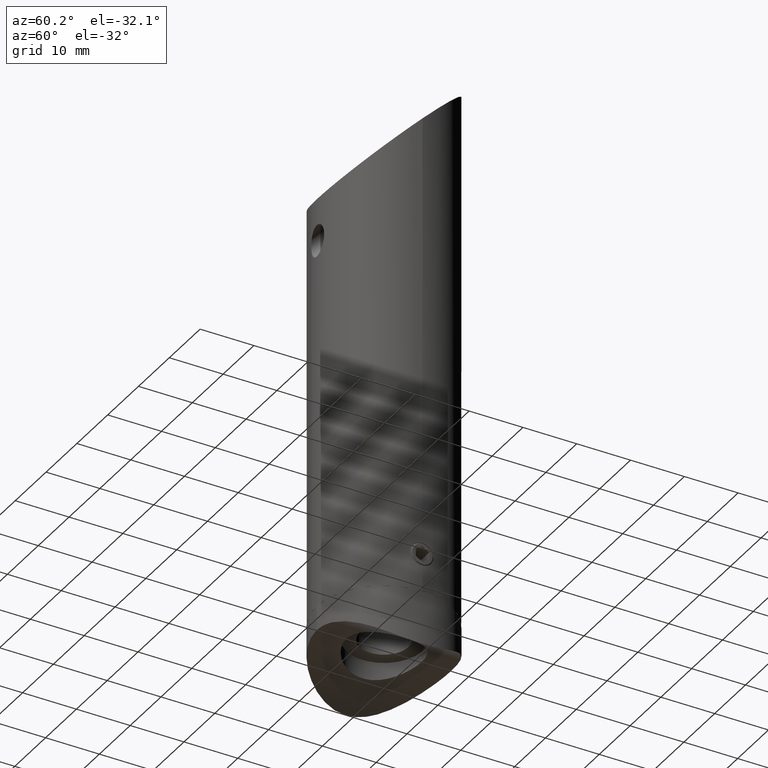
[diagram: clean part render]
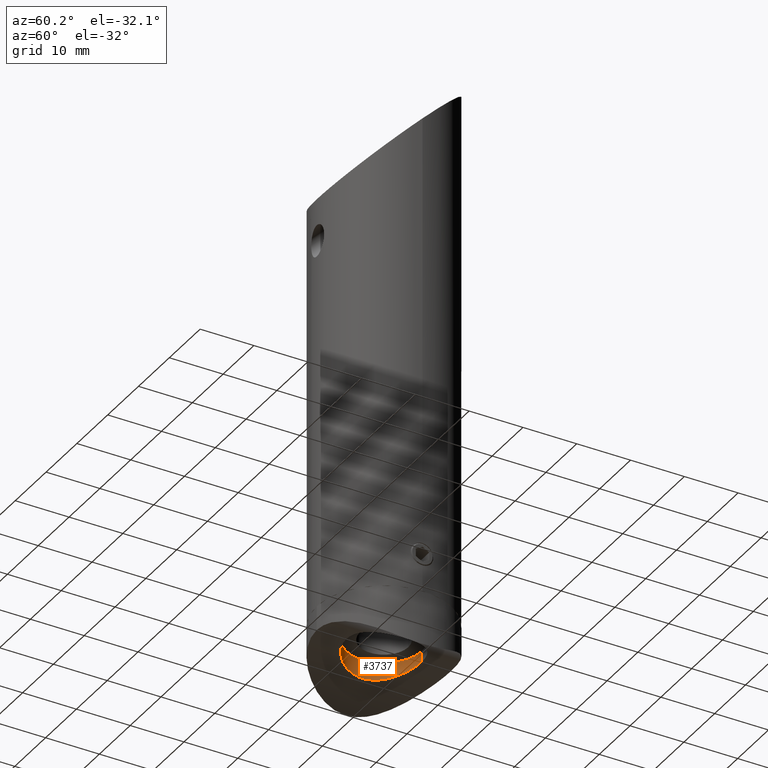
[diagram: same view with one face highlighted and labeled with its STEP entity id]
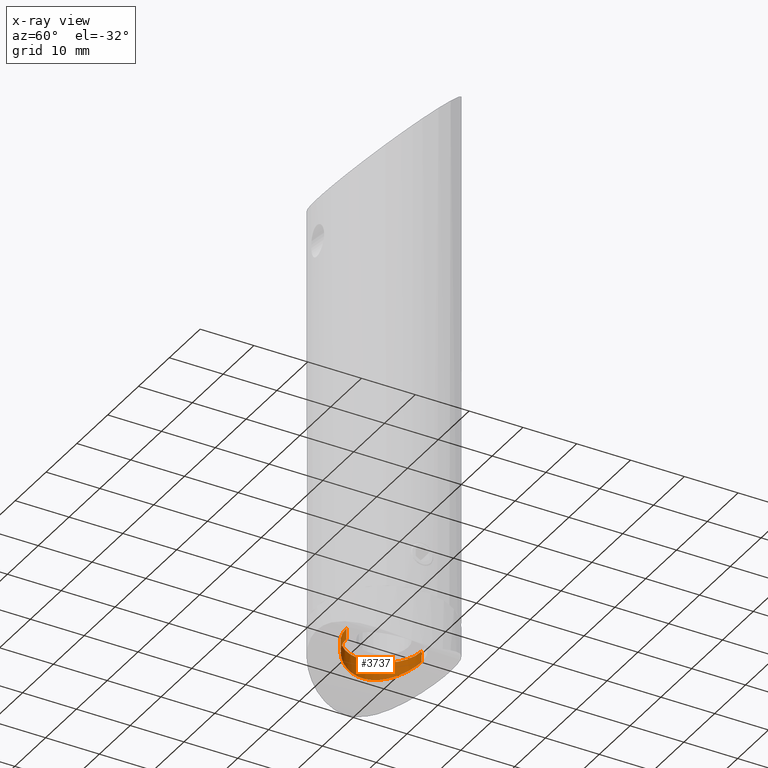
[diagram: x-ray of the same camera — body ghosted, the highlighted face saturated]
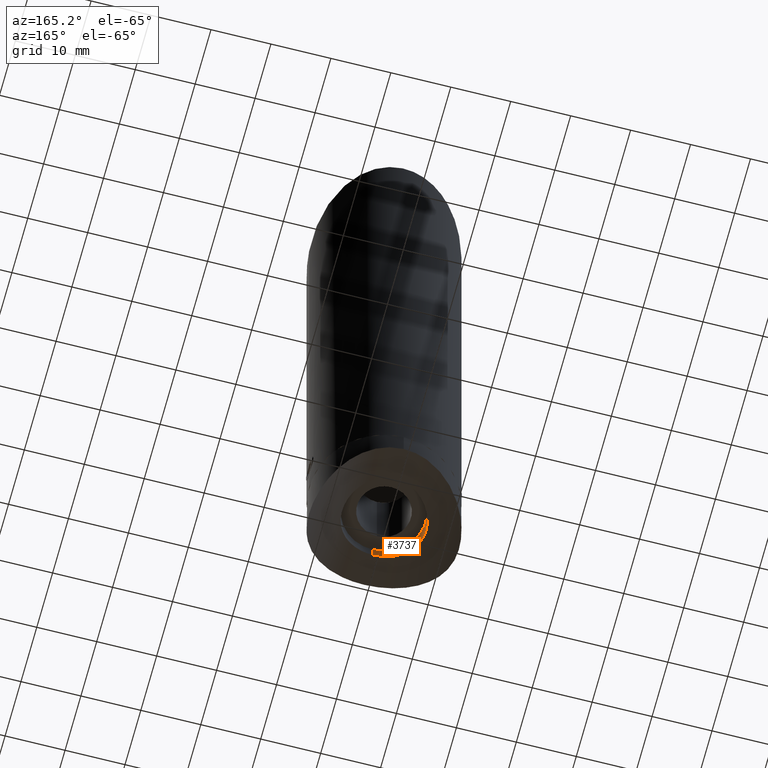
[diagram: same view with one face highlighted and labeled with its STEP entity id]
A machine part, auxiliary view. The second image highlights one B-rep face of the part: STEP entity #3737.
The next image is the same camera in x-ray: the body ghosted, the highlighted face saturated — about 0% of this face is hidden behind the body in this view.
A second angle (auxiliary view) of the same face is appended — the face is thin or edge-on in the first view.
In plain terms, the highlighted cylindrical surface (partial cylindrical patch) has radius 7 mm, axis along (-0, -0, -1).
Its self-contained STEP definition (entity closure, byte-faithful):
#254 = DIRECTION ( 'NONE',  ( -1.905692200961614700E-032, 0.0000000000000000000, 1.000000000000000000 ) ) ;
#537 = CARTESIAN_POINT ( 'NONE',  ( 1.444447458290426900E-031, -4.500000000000000900, -7.000000000000000000 ) ) ;
#563 = CARTESIAN_POINT ( 'NONE',  ( -0.9233998952594038000, -4.523730889567935300, 6.942713405253385900 ) ) ;
#616 = CARTESIAN_POINT ( 'NONE',  ( -4.621978727045388700, -5.145282782590510500, -5.262020382678610300 ) ) ;
#678 = CARTESIAN_POINT ( 'NONE',  ( 8.572836092945032900E-016, -4.500000000000002700, 7.000000000000000000 ) ) ;
#704 = DIRECTION ( 'NONE',  ( 0.0000000000000000000, -1.000000000000000000, 1.479114197289397100E-031 ) ) ;
#735 = CARTESIAN_POINT ( 'NONE',  ( -2.909376329214568500, -4.751683982040935600, 6.370890201065659400 ) ) ;
#774 = EDGE_CURVE ( 'NONE', #12657, #1624, #14159, .T. ) ;
#936 = CARTESIAN_POINT ( 'NONE',  ( 0.0000000000000000000, 19.79898987322333100, -3.081487911019577400E-030 ) ) ;
#1457 = DIRECTION ( 'NONE',  ( 1.905692200961614700E-032, 0.0000000000000000000, -1.000000000000000000 ) ) ;
#1596 = ORIENTED_EDGE ( 'NONE', *, *, #774, .T. ) ;
#1624 = VERTEX_POINT ( 'NONE', #10804 ) ;
#1671 = CARTESIAN_POINT ( 'NONE',  ( 8.572836092945032900E-016, -4.500000000000002700, 7.000000000000000000 ) ) ;
#1851 = AXIS2_PLACEMENT_3D ( 'NONE', #11046, #2923, #254 ) ;
#1857 = CARTESIAN_POINT ( 'NONE',  ( -6.636770015178059100, -5.860905529658265500, 2.272035497270523200 ) ) ;
#1919 = CARTESIAN_POINT ( 'NONE',  ( -5.561830812071679700, -5.442122912558438100, 4.274405888664973400 ) ) ;
#1973 = CARTESIAN_POINT ( 'NONE',  ( -4.271287959951610700, -5.049336007001430800, -5.550463496335930300 ) ) ;
#2292 = DIRECTION ( 'NONE',  ( 0.0000000000000000000, -1.000000000000000000, 1.479114197289397100E-031 ) ) ;
#2923 = DIRECTION ( 'NONE',  ( 0.0000000000000000000, 1.000000000000000000, -1.479114197289397100E-031 ) ) ;
#3230 = CARTESIAN_POINT ( 'NONE',  ( -6.636724849622155800, -5.860887903597061100, -2.272106378314729700 ) ) ;
#3241 = CARTESIAN_POINT ( 'NONE',  ( 1.444447458290426900E-031, -4.500000000000000900, -7.000000000000000000 ) ) ;
#3285 = CARTESIAN_POINT ( 'NONE',  ( -6.372956993135644200, -5.751378743618787800, 2.904760669564610400 ) ) ;
#3400 = CARTESIAN_POINT ( 'NONE',  ( -6.771941432298941500, -5.920373976570259900, -1.832445923626963900 ) ) ;
#3677 = CYLINDRICAL_SURFACE ( 'NONE', #13354, 7.000000000000000000 ) ;
#3737 = ADVANCED_FACE ( 'NONE', ( #12195 ), #3677, .F. ) ;
#4573 = CARTESIAN_POINT ( 'NONE',  ( -5.560146934216057000, -5.441516402802975900, -4.276773033472888800 ) ) ;
#4679 = CARTESIAN_POINT ( 'NONE',  ( -6.955053648528188900, -6.002043174041634000, -0.9188457822718838500 ) ) ;
#4710 = CARTESIAN_POINT ( 'NONE',  ( 8.572527594031471200E-016, 19.79898987322333100, 7.000000000000000000 ) ) ;
#5050 = B_SPLINE_CURVE_WITH_KNOTS ( 'NONE', 3,
 ( #678, #16816, #15499, #563, #16528, #5646, #9965, #735, #15552, #10139, #10021, #11614, #16944, #8780, #1919, #15134, #6117, #7374, #3285, #1857, #12777, #11357, #10198, #14135, #7488, #17008, #4679, #3400, #3230, #12726, #16882, #4573, #8720, #14079, #616, #1973, #14197, #6062, #9185, #16549, #12851, #7009, #14018, #6003, #5398, #537 ),
 .UNSPECIFIED., .F., .F.,
 ( 4, 2, 2, 2, 2, 2, 2, 2, 2, 2, 2, 2, 2, 2, 2, 2, 2, 2, 2, 2, 2, 2, 4 ),
 ( 0.02213912639295909800, 0.02283042487489349300, 0.02352172335682788500, 0.02490432032069667100, 0.02559561880263106300, 0.02628691728456545400, 0.02766951424843424100, 0.02905211121230302800, 0.02974340969423741900, 0.03043470817617181100, 0.03181730514004059400, 0.03250860362197499600, 0.03319990210390938400, 0.03458249906777817500, 0.03596509603164696500, 0.03734769299551574800, 0.03873028995938453100, 0.03942158844131893300, 0.04011288692325332100, 0.04149548388712210500, 0.04287808085099089500, 0.04356937933292529000, 0.04426067781485967800 ),
 .UNSPECIFIED. ) ;
#5398 = CARTESIAN_POINT ( 'NONE',  ( -0.2339319851819182700, -4.500000000000002700, -7.000000000000001800 ) ) ;
#5432 = ORIENTED_EDGE ( 'NONE', *, *, #11081, .T. ) ;
#5646 = CARTESIAN_POINT ( 'NONE',  ( -1.835519393258697700, -4.594094228705203300, 6.770880741713710900 ) ) ;
#6003 = CARTESIAN_POINT ( 'NONE',  ( -0.4687262624490622400, -4.504934096560898400, -6.988146510130222900 ) ) ;
#6062 = CARTESIAN_POINT ( 'NONE',  ( -3.526509236569947100, -4.868640287161692700, -6.063686176302126400 ) ) ;
#6117 = CARTESIAN_POINT ( 'NONE',  ( -6.056959282881861000, -5.625836500499921100, 3.516485487467452000 ) ) ;
#6784 = CARTESIAN_POINT ( 'NONE',  ( 1.333984540673130400E-031, -2.499999999999998700, -7.000000000000000000 ) ) ;
#7009 = CARTESIAN_POINT ( 'NONE',  ( -1.158670069641858400, -4.538367978887174000, -6.907256092517379800 ) ) ;
#7091 = ORIENTED_EDGE ( 'NONE', *, *, #16715, .T. ) ;
#7374 = CARTESIAN_POINT ( 'NONE',  ( -6.273811958121078700, -5.711094762495803500, 3.113151048727782000 ) ) ;
#7488 = CARTESIAN_POINT ( 'NONE',  ( -6.999943784448051400, -6.022792589047460500, 0.2324078856467767800 ) ) ;
#8109 = LINE ( 'NONE', #12497, #11298 ) ;
#8376 = DIRECTION ( 'NONE',  ( 0.0000000000000000000, -1.000000000000000000, 1.479114197289397100E-031 ) ) ;
#8506 = LINE ( 'NONE', #4710, #9568 ) ;
#8720 = CARTESIAN_POINT ( 'NONE',  ( -5.273558553239584300, -5.342971437573593700, -4.625588258349481800 ) ) ;
#8780 = CARTESIAN_POINT ( 'NONE',  ( -5.275729201440094900, -5.343672389700206100, 4.623215728567818600 ) ) ;
#9185 = CARTESIAN_POINT ( 'NONE',  ( -3.126001669560105200, -4.786859569925604200, -6.280298139647209500 ) ) ;
#9568 = VECTOR ( 'NONE', #704, 1000.000000000000000 ) ;
#9948 = ORIENTED_EDGE ( 'NONE', *, *, #14149, .F. ) ;
#9965 = CARTESIAN_POINT ( 'NONE',  ( -2.273796329587633600, -4.648604511009399900, 6.636316792292822300 ) ) ;
#10021 = CARTESIAN_POINT ( 'NONE',  ( -3.716134109163620600, -4.913752723326233300, 5.936471108917954700 ) ) ;
#10139 = CARTESIAN_POINT ( 'NONE',  ( -3.521494789715862600, -4.870806529521635400, 6.054045079264999400 ) ) ;
#10198 = CARTESIAN_POINT ( 'NONE',  ( -6.942200837238068800, -5.996531525247315900, 0.9274426588612306700 ) ) ;
#10804 = CARTESIAN_POINT ( 'NONE',  ( 8.572527594031471200E-016, -2.499999999999998700, 7.000000000000000000 ) ) ;
#11046 = CARTESIAN_POINT ( 'NONE',  ( 0.0000000000000000000, -2.499999999999998700, 3.851859888774471700E-031 ) ) ;
#11081 = EDGE_CURVE ( 'NONE', #1624, #15252, #8506, .T. ) ;
#11298 = VECTOR ( 'NONE', #8376, 1000.000000000000000 ) ;
#11357 = CARTESIAN_POINT ( 'NONE',  ( -6.907329419893631700, -5.980751900978204600, 1.158384319402137500 ) ) ;
#11614 = CARTESIAN_POINT ( 'NONE',  ( -4.280346317594083200, -5.048139847536445400, 5.557337777991024000 ) ) ;
#12195 = FACE_OUTER_BOUND ( 'NONE', #14233, .T. ) ;
#12497 = CARTESIAN_POINT ( 'NONE',  ( 1.333984540673130400E-031, 19.79898987322333100, -7.000000000000000000 ) ) ;
#12657 = VERTEX_POINT ( 'NONE', #6784 ) ;
#12726 = CARTESIAN_POINT ( 'NONE',  ( -6.285234423306896200, -5.714957994664482400, -3.115190582941711500 ) ) ;
#12777 = CARTESIAN_POINT ( 'NONE',  ( -6.770691348012535500, -5.919828709738805400, 1.835743570166448800 ) ) ;
#12851 = CARTESIAN_POINT ( 'NONE',  ( -1.833794753666307300, -4.593996688476520000, -6.771115789368477200 ) ) ;
#13354 = AXIS2_PLACEMENT_3D ( 'NONE', #936, #2292, #1457 ) ;
#14018 = CARTESIAN_POINT ( 'NONE',  ( -0.9307108073408066900, -4.524135178439857800, -6.941734174487933700 ) ) ;
#14079 = CARTESIAN_POINT ( 'NONE',  ( -4.791846263030289600, -5.194848184103066500, -5.107820575259021100 ) ) ;
#14135 = CARTESIAN_POINT ( 'NONE',  ( -6.988511439056013700, -6.017555493791711300, 0.4636919410640756300 ) ) ;
#14149 = EDGE_CURVE ( 'NONE', #12657, #16311, #8109, .T. ) ;
#14159 = CIRCLE ( 'NONE', #1851, 7.000000000000000000 ) ;
#14197 = CARTESIAN_POINT ( 'NONE',  ( -4.089750524445172200, -5.002716219729464300, -5.685514928999229100 ) ) ;
#14233 = EDGE_LOOP ( 'NONE', ( #1596, #5432, #7091, #9948 ) ) ;
#15134 = CARTESIAN_POINT ( 'NONE',  ( -5.939647507040639600, -5.581008550166551200, 3.711026059312551700 ) ) ;
#15252 = VERTEX_POINT ( 'NONE', #1671 ) ;
#15499 = CARTESIAN_POINT ( 'NONE',  ( -0.4611911382083110900, -4.504724630410949600, 6.988650765926729000 ) ) ;
#15552 = CARTESIAN_POINT ( 'NONE',  ( -3.118490834469125300, -4.789814073906512700, 6.271156375908735600 ) ) ;
#16311 = VERTEX_POINT ( 'NONE', #3241 ) ;
#16528 = CARTESIAN_POINT ( 'NONE',  ( -1.155344261091265400, -4.538116344286456700, 6.907870077219757700 ) ) ;
#16549 = CARTESIAN_POINT ( 'NONE',  ( -2.272283239191495300, -4.648316365547246100, -6.637074659956614800 ) ) ;
#16715 = EDGE_CURVE ( 'NONE', #15252, #16311, #5050, .T. ) ;
#16816 = CARTESIAN_POINT ( 'NONE',  ( -0.2304284172324697900, -4.500000000000000900, 6.999999999999999100 ) ) ;
#16882 = CARTESIAN_POINT ( 'NONE',  ( -6.065896380676663000, -5.627405258951286600, -3.522913937184222600 ) ) ;
#16944 = CARTESIAN_POINT ( 'NONE',  ( -4.632160546412148200, -5.145712578226836700, 5.267877271925321700 ) ) ;
#17008 = CARTESIAN_POINT ( 'NONE',  ( -7.000111812258808200, -6.022869328180171100, -0.4597175859693116200 ) ) ;